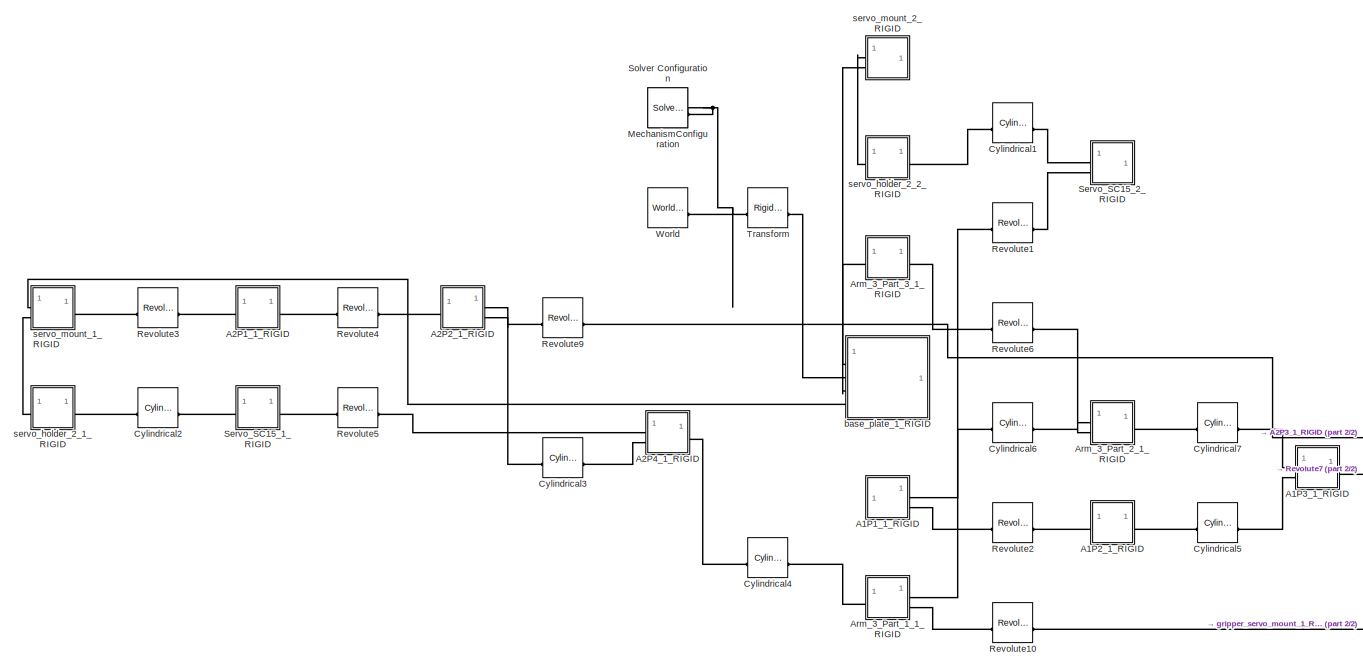
[diagram: root canvas - part 1/2, most of the canvas]
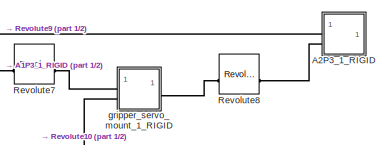
[diagram: root canvas - part 2/2, bottom right region]
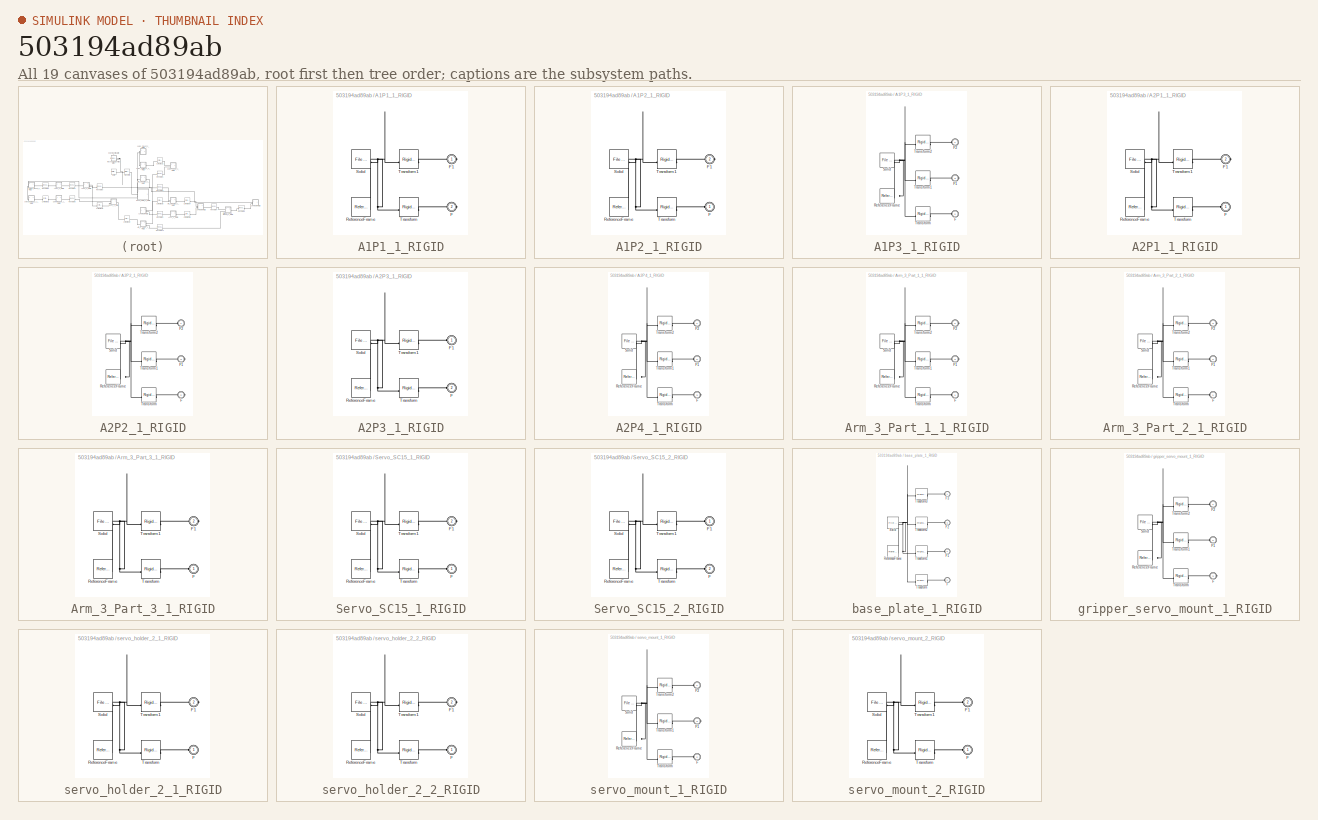
[diagram: thumbnail index - all 19 canvases of the model, root first then tree order]
MODEL slx_503194ad89ab
KIND model
CONFIG AbsTol = auto
CONFIG EnableMultiTasking = off
CONFIG FixedStep = auto
CONFIG MaxStep = auto
CONFIG MinStep = auto
CONFIG RelTol = 1e-3
CONFIG SampleTimeConstraint = Unconstrained
CONFIG SolverName = VariableStepAuto
CONFIG StartTime = 0.0
CONFIG StopTime = 10.0
WORKSPACE source: external: MATLAB File  (data not in archive)
BLOCK [SubSystem] A1P1_1_RIGID
BLOCK [PMIOPort] A1P1_1_RIGID/F
  Port = 2
  Side = Right
BLOCK [PMIOPort] A1P1_1_RIGID/F1
  Side = Right
BLOCK [Reference] A1P1_1_RIGID/ReferenceFrame  REF=sm_lib/Frames and
Transforms/Reference
Frame
  SourceBlock = sm_lib/Frames and\nTransforms/Reference\nFrame
  SourceType = Reference\nFrame
BLOCK [Reference] A1P1_1_RIGID/Solid  REF=sm_lib/Body Elements/File Solid
  SourceBlock = sm_lib/Body Elements/File Solid
  SourceType = File Solid
BLOCK [Reference] A1P1_1_RIGID/Transform  REF=sm_lib/Frames and
Transforms/Rigid
Transform
  SourceBlock = sm_lib/Frames and\nTransforms/Rigid\nTransform
  SourceType = Rigid\nTransform
BLOCK [Reference] A1P1_1_RIGID/Transform1  REF=sm_lib/Frames and
Transforms/Rigid
Transform
  SourceBlock = sm_lib/Frames and\nTransforms/Rigid\nTransform
  SourceType = Rigid\nTransform
BLOCK [SubSystem] A1P2_1_RIGID
BLOCK [PMIOPort] A1P2_1_RIGID/F
  Side = Left
BLOCK [PMIOPort] A1P2_1_RIGID/F1
  Port = 2
  Side = Right
BLOCK [Reference] A1P2_1_RIGID/ReferenceFrame  REF=sm_lib/Frames and
Transforms/Reference
Frame
  SourceBlock = sm_lib/Frames and\nTransforms/Reference\nFrame
  SourceType = Reference\nFrame
BLOCK [Reference] A1P2_1_RIGID/Solid  REF=sm_lib/Body Elements/File Solid
  SourceBlock = sm_lib/Body Elements/File Solid
  SourceType = File Solid
BLOCK [Reference] A1P2_1_RIGID/Transform  REF=sm_lib/Frames and
Transforms/Rigid
Transform
  SourceBlock = sm_lib/Frames and\nTransforms/Rigid\nTransform
  SourceType = Rigid\nTransform
BLOCK [Reference] A1P2_1_RIGID/Transform1  REF=sm_lib/Frames and
Transforms/Rigid
Transform
  SourceBlock = sm_lib/Frames and\nTransforms/Rigid\nTransform
  SourceType = Rigid\nTransform
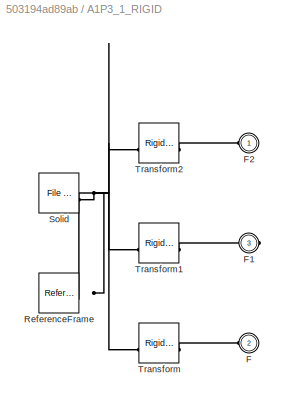
BLOCK [SubSystem] A1P3_1_RIGID
BLOCK [PMIOPort] A1P3_1_RIGID/F
  Port = 2
  Side = Left
BLOCK [PMIOPort] A1P3_1_RIGID/F1
  Port = 3
  Side = Right
BLOCK [PMIOPort] A1P3_1_RIGID/F2
  Side = Left
BLOCK [Reference] A1P3_1_RIGID/ReferenceFrame  REF=sm_lib/Frames and
Transforms/Reference
Frame
  SourceBlock = sm_lib/Frames and\nTransforms/Reference\nFrame
  SourceType = Reference\nFrame
BLOCK [Reference] A1P3_1_RIGID/Solid  REF=sm_lib/Body Elements/File Solid
  SourceBlock = sm_lib/Body Elements/File Solid
  SourceType = File Solid
BLOCK [Reference] A1P3_1_RIGID/Transform  REF=sm_lib/Frames and
Transforms/Rigid
Transform
  SourceBlock = sm_lib/Frames and\nTransforms/Rigid\nTransform
  SourceType = Rigid\nTransform
BLOCK [Reference] A1P3_1_RIGID/Transform1  REF=sm_lib/Frames and
Transforms/Rigid
Transform
  SourceBlock = sm_lib/Frames and\nTransforms/Rigid\nTransform
  SourceType = Rigid\nTransform
BLOCK [Reference] A1P3_1_RIGID/Transform2  REF=sm_lib/Frames and
Transforms/Rigid
Transform
  SourceBlock = sm_lib/Frames and\nTransforms/Rigid\nTransform
  SourceType = Rigid\nTransform
BLOCK [SubSystem] A2P1_1_RIGID
BLOCK [PMIOPort] A2P1_1_RIGID/F
  Side = Left
BLOCK [PMIOPort] A2P1_1_RIGID/F1
  Port = 2
  Side = Right
BLOCK [Reference] A2P1_1_RIGID/ReferenceFrame  REF=sm_lib/Frames and
Transforms/Reference
Frame
  SourceBlock = sm_lib/Frames and\nTransforms/Reference\nFrame
  SourceType = Reference\nFrame
BLOCK [Reference] A2P1_1_RIGID/Solid  REF=sm_lib/Body Elements/File Solid
  SourceBlock = sm_lib/Body Elements/File Solid
  SourceType = File Solid
BLOCK [Reference] A2P1_1_RIGID/Transform  REF=sm_lib/Frames and
Transforms/Rigid
Transform
  SourceBlock = sm_lib/Frames and\nTransforms/Rigid\nTransform
  SourceType = Rigid\nTransform
BLOCK [Reference] A2P1_1_RIGID/Transform1  REF=sm_lib/Frames and
Transforms/Rigid
Transform
  SourceBlock = sm_lib/Frames and\nTransforms/Rigid\nTransform
  SourceType = Rigid\nTransform
BLOCK [SubSystem] A2P2_1_RIGID
BLOCK [PMIOPort] A2P2_1_RIGID/F
  Port = 2
  Side = Right
BLOCK [PMIOPort] A2P2_1_RIGID/F1
  Port = 3
  Side = Right
BLOCK [PMIOPort] A2P2_1_RIGID/F2
  Side = Left
BLOCK [Reference] A2P2_1_RIGID/ReferenceFrame  REF=sm_lib/Frames and
Transforms/Reference
Frame
  SourceBlock = sm_lib/Frames and\nTransforms/Reference\nFrame
  SourceType = Reference\nFrame
BLOCK [Reference] A2P2_1_RIGID/Solid  REF=sm_lib/Body Elements/File Solid
  SourceBlock = sm_lib/Body Elements/File Solid
  SourceType = File Solid
BLOCK [Reference] A2P2_1_RIGID/Transform  REF=sm_lib/Frames and
Transforms/Rigid
Transform
  SourceBlock = sm_lib/Frames and\nTransforms/Rigid\nTransform
  SourceType = Rigid\nTransform
BLOCK [Reference] A2P2_1_RIGID/Transform1  REF=sm_lib/Frames and
Transforms/Rigid
Transform
  SourceBlock = sm_lib/Frames and\nTransforms/Rigid\nTransform
  SourceType = Rigid\nTransform
BLOCK [Reference] A2P2_1_RIGID/Transform2  REF=sm_lib/Frames and
Transforms/Rigid
Transform
  SourceBlock = sm_lib/Frames and\nTransforms/Rigid\nTransform
  SourceType = Rigid\nTransform
BLOCK [SubSystem] A2P3_1_RIGID
BLOCK [PMIOPort] A2P3_1_RIGID/F
  Port = 2
  Side = Left
BLOCK [PMIOPort] A2P3_1_RIGID/F1
  Side = Left
BLOCK [Reference] A2P3_1_RIGID/ReferenceFrame  REF=sm_lib/Frames and
Transforms/Reference
Frame
  SourceBlock = sm_lib/Frames and\nTransforms/Reference\nFrame
  SourceType = Reference\nFrame
BLOCK [Reference] A2P3_1_RIGID/Solid  REF=sm_lib/Body Elements/File Solid
  SourceBlock = sm_lib/Body Elements/File Solid
  SourceType = File Solid
BLOCK [Reference] A2P3_1_RIGID/Transform  REF=sm_lib/Frames and
Transforms/Rigid
Transform
  SourceBlock = sm_lib/Frames and\nTransforms/Rigid\nTransform
  SourceType = Rigid\nTransform
BLOCK [Reference] A2P3_1_RIGID/Transform1  REF=sm_lib/Frames and
Transforms/Rigid
Transform
  SourceBlock = sm_lib/Frames and\nTransforms/Rigid\nTransform
  SourceType = Rigid\nTransform
BLOCK [SubSystem] A2P4_1_RIGID
BLOCK [PMIOPort] A2P4_1_RIGID/F
  Port = 3
  Side = Right
BLOCK [PMIOPort] A2P4_1_RIGID/F1
  Port = 2
  Side = Left
BLOCK [PMIOPort] A2P4_1_RIGID/F2
  Side = Left
BLOCK [Reference] A2P4_1_RIGID/ReferenceFrame  REF=sm_lib/Frames and
Transforms/Reference
Frame
  SourceBlock = sm_lib/Frames and\nTransforms/Reference\nFrame
  SourceType = Reference\nFrame
BLOCK [Reference] A2P4_1_RIGID/Solid  REF=sm_lib/Body Elements/File Solid
  SourceBlock = sm_lib/Body Elements/File Solid
  SourceType = File Solid
BLOCK [Reference] A2P4_1_RIGID/Transform  REF=sm_lib/Frames and
Transforms/Rigid
Transform
  SourceBlock = sm_lib/Frames and\nTransforms/Rigid\nTransform
  SourceType = Rigid\nTransform
BLOCK [Reference] A2P4_1_RIGID/Transform1  REF=sm_lib/Frames and
Transforms/Rigid
Transform
  SourceBlock = sm_lib/Frames and\nTransforms/Rigid\nTransform
  SourceType = Rigid\nTransform
BLOCK [Reference] A2P4_1_RIGID/Transform2  REF=sm_lib/Frames and
Transforms/Rigid
Transform
  SourceBlock = sm_lib/Frames and\nTransforms/Rigid\nTransform
  SourceType = Rigid\nTransform
BLOCK [SubSystem] Arm_3_Part_1_1_RIGID
BLOCK [PMIOPort] Arm_3_Part_1_1_RIGID/F
  Side = Left
BLOCK [PMIOPort] Arm_3_Part_1_1_RIGID/F1
  Port = 3
  Side = Right
BLOCK [PMIOPort] Arm_3_Part_1_1_RIGID/F2
  Port = 2
  Side = Right
BLOCK [Reference] Arm_3_Part_1_1_RIGID/ReferenceFrame  REF=sm_lib/Frames and
Transforms/Reference
Frame
  SourceBlock = sm_lib/Frames and\nTransforms/Reference\nFrame
  SourceType = Reference\nFrame
BLOCK [Reference] Arm_3_Part_1_1_RIGID/Solid  REF=sm_lib/Body Elements/File Solid
  SourceBlock = sm_lib/Body Elements/File Solid
  SourceType = File Solid
BLOCK [Reference] Arm_3_Part_1_1_RIGID/Transform  REF=sm_lib/Frames and
Transforms/Rigid
Transform
  SourceBlock = sm_lib/Frames and\nTransforms/Rigid\nTransform
  SourceType = Rigid\nTransform
BLOCK [Reference] Arm_3_Part_1_1_RIGID/Transform1  REF=sm_lib/Frames and
Transforms/Rigid
Transform
  SourceBlock = sm_lib/Frames and\nTransforms/Rigid\nTransform
  SourceType = Rigid\nTransform
BLOCK [Reference] Arm_3_Part_1_1_RIGID/Transform2  REF=sm_lib/Frames and
Transforms/Rigid
Transform
  SourceBlock = sm_lib/Frames and\nTransforms/Rigid\nTransform
  SourceType = Rigid\nTransform
BLOCK [SubSystem] Arm_3_Part_2_1_RIGID
BLOCK [PMIOPort] Arm_3_Part_2_1_RIGID/F
  Side = Left
BLOCK [PMIOPort] Arm_3_Part_2_1_RIGID/F1
  Port = 2
  Side = Left
BLOCK [PMIOPort] Arm_3_Part_2_1_RIGID/F2
  Port = 3
  Side = Right
BLOCK [Reference] Arm_3_Part_2_1_RIGID/ReferenceFrame  REF=sm_lib/Frames and
Transforms/Reference
Frame
  SourceBlock = sm_lib/Frames and\nTransforms/Reference\nFrame
  SourceType = Reference\nFrame
BLOCK [Reference] Arm_3_Part_2_1_RIGID/Solid  REF=sm_lib/Body Elements/File Solid
  SourceBlock = sm_lib/Body Elements/File Solid
  SourceType = File Solid
BLOCK [Reference] Arm_3_Part_2_1_RIGID/Transform  REF=sm_lib/Frames and
Transforms/Rigid
Transform
  SourceBlock = sm_lib/Frames and\nTransforms/Rigid\nTransform
  SourceType = Rigid\nTransform
BLOCK [Reference] Arm_3_Part_2_1_RIGID/Transform1  REF=sm_lib/Frames and
Transforms/Rigid
Transform
  SourceBlock = sm_lib/Frames and\nTransforms/Rigid\nTransform
  SourceType = Rigid\nTransform
BLOCK [Reference] Arm_3_Part_2_1_RIGID/Transform2  REF=sm_lib/Frames and
Transforms/Rigid
Transform
  SourceBlock = sm_lib/Frames and\nTransforms/Rigid\nTransform
  SourceType = Rigid\nTransform
BLOCK [SubSystem] Arm_3_Part_3_1_RIGID
BLOCK [PMIOPort] Arm_3_Part_3_1_RIGID/F
  Side = Left
BLOCK [PMIOPort] Arm_3_Part_3_1_RIGID/F1
  Port = 2
  Side = Right
BLOCK [Reference] Arm_3_Part_3_1_RIGID/ReferenceFrame  REF=sm_lib/Frames and
Transforms/Reference
Frame
  SourceBlock = sm_lib/Frames and\nTransforms/Reference\nFrame
  SourceType = Reference\nFrame
BLOCK [Reference] Arm_3_Part_3_1_RIGID/Solid  REF=sm_lib/Body Elements/File Solid
  SourceBlock = sm_lib/Body Elements/File Solid
  SourceType = File Solid
BLOCK [Reference] Arm_3_Part_3_1_RIGID/Transform  REF=sm_lib/Frames and
Transforms/Rigid
Transform
  SourceBlock = sm_lib/Frames and\nTransforms/Rigid\nTransform
  SourceType = Rigid\nTransform
BLOCK [Reference] Arm_3_Part_3_1_RIGID/Transform1  REF=sm_lib/Frames and
Transforms/Rigid
Transform
  SourceBlock = sm_lib/Frames and\nTransforms/Rigid\nTransform
  SourceType = Rigid\nTransform
BLOCK [Reference] Cylindrical1  REF=sm_lib/Joints/Cylindrical
Joint
  SourceBlock = sm_lib/Joints/Cylindrical\nJoint
  SourceType = Cylindrical\nJoint
BLOCK [Reference] Cylindrical2  REF=sm_lib/Joints/Cylindrical
Joint
  SourceBlock = sm_lib/Joints/Cylindrical\nJoint
  SourceType = Cylindrical\nJoint
BLOCK [Reference] Cylindrical3  REF=sm_lib/Joints/Cylindrical
Joint
  SourceBlock = sm_lib/Joints/Cylindrical\nJoint
  SourceType = Cylindrical\nJoint
BLOCK [Reference] Cylindrical4  REF=sm_lib/Joints/Cylindrical
Joint
  SourceBlock = sm_lib/Joints/Cylindrical\nJoint
  SourceType = Cylindrical\nJoint
BLOCK [Reference] Cylindrical5  REF=sm_lib/Joints/Cylindrical
Joint
  SourceBlock = sm_lib/Joints/Cylindrical\nJoint
  SourceType = Cylindrical\nJoint
BLOCK [Reference] Cylindrical6  REF=sm_lib/Joints/Cylindrical
Joint
  SourceBlock = sm_lib/Joints/Cylindrical\nJoint
  SourceType = Cylindrical\nJoint
BLOCK [Reference] Cylindrical7  REF=sm_lib/Joints/Cylindrical
Joint
  SourceBlock = sm_lib/Joints/Cylindrical\nJoint
  SourceType = Cylindrical\nJoint
BLOCK [Reference] MechanismConfiguration  REF=sm_lib/Utilities/Mechanism
Configuration
  SourceBlock = sm_lib/Utilities/Mechanism\nConfiguration
  SourceType = Mechanism\nConfiguration
BLOCK [Reference] Revolute1  REF=sm_lib/Joints/Revolute Joint
  SourceBlock = sm_lib/Joints/Revolute Joint
  SourceType = Revolute Joint
BLOCK [Reference] Revolute10  REF=sm_lib/Joints/Revolute Joint
  SourceBlock = sm_lib/Joints/Revolute Joint
  SourceType = Revolute Joint
BLOCK [Reference] Revolute2  REF=sm_lib/Joints/Revolute Joint
  SourceBlock = sm_lib/Joints/Revolute Joint
  SourceType = Revolute Joint
BLOCK [Reference] Revolute3  REF=sm_lib/Joints/Revolute Joint
  SourceBlock = sm_lib/Joints/Revolute Joint
  SourceType = Revolute Joint
BLOCK [Reference] Revolute4  REF=sm_lib/Joints/Revolute Joint
  SourceBlock = sm_lib/Joints/Revolute Joint
  SourceType = Revolute Joint
BLOCK [Reference] Revolute5  REF=sm_lib/Joints/Revolute Joint
  SourceBlock = sm_lib/Joints/Revolute Joint
  SourceType = Revolute Joint
BLOCK [Reference] Revolute6  REF=sm_lib/Joints/Revolute Joint
  SourceBlock = sm_lib/Joints/Revolute Joint
  SourceType = Revolute Joint
BLOCK [Reference] Revolute7  REF=sm_lib/Joints/Revolute Joint
  SourceBlock = sm_lib/Joints/Revolute Joint
  SourceType = Revolute Joint
BLOCK [Reference] Revolute8  REF=sm_lib/Joints/Revolute Joint
  SourceBlock = sm_lib/Joints/Revolute Joint
  SourceType = Revolute Joint
BLOCK [Reference] Revolute9  REF=sm_lib/Joints/Revolute Joint
  SourceBlock = sm_lib/Joints/Revolute Joint
  SourceType = Revolute Joint
BLOCK [SubSystem] Servo_SC15_1_RIGID
BLOCK [PMIOPort] Servo_SC15_1_RIGID/F
  Side = Left
BLOCK [PMIOPort] Servo_SC15_1_RIGID/F1
  Port = 2
  Side = Right
BLOCK [Reference] Servo_SC15_1_RIGID/ReferenceFrame  REF=sm_lib/Frames and
Transforms/Reference
Frame
  SourceBlock = sm_lib/Frames and\nTransforms/Reference\nFrame
  SourceType = Reference\nFrame
BLOCK [Reference] Servo_SC15_1_RIGID/Solid  REF=sm_lib/Body Elements/File Solid
  SourceBlock = sm_lib/Body Elements/File Solid
  SourceType = File Solid
BLOCK [Reference] Servo_SC15_1_RIGID/Transform  REF=sm_lib/Frames and
Transforms/Rigid
Transform
  SourceBlock = sm_lib/Frames and\nTransforms/Rigid\nTransform
  SourceType = Rigid\nTransform
BLOCK [Reference] Servo_SC15_1_RIGID/Transform1  REF=sm_lib/Frames and
Transforms/Rigid
Transform
  SourceBlock = sm_lib/Frames and\nTransforms/Rigid\nTransform
  SourceType = Rigid\nTransform
BLOCK [SubSystem] Servo_SC15_2_RIGID
BLOCK [PMIOPort] Servo_SC15_2_RIGID/F
  Port = 2
  Side = Left
BLOCK [PMIOPort] Servo_SC15_2_RIGID/F1
  Side = Left
BLOCK [Reference] Servo_SC15_2_RIGID/ReferenceFrame  REF=sm_lib/Frames and
Transforms/Reference
Frame
  SourceBlock = sm_lib/Frames and\nTransforms/Reference\nFrame
  SourceType = Reference\nFrame
BLOCK [Reference] Servo_SC15_2_RIGID/Solid  REF=sm_lib/Body Elements/File Solid
  SourceBlock = sm_lib/Body Elements/File Solid
  SourceType = File Solid
BLOCK [Reference] Servo_SC15_2_RIGID/Transform  REF=sm_lib/Frames and
Transforms/Rigid
Transform
  SourceBlock = sm_lib/Frames and\nTransforms/Rigid\nTransform
  SourceType = Rigid\nTransform
BLOCK [Reference] Servo_SC15_2_RIGID/Transform1  REF=sm_lib/Frames and
Transforms/Rigid
Transform
  SourceBlock = sm_lib/Frames and\nTransforms/Rigid\nTransform
  SourceType = Rigid\nTransform
BLOCK [Reference] Solver Configuration  REF=nesl_utility/Solver
Configuration
  SourceBlock = nesl_utility/Solver\nConfiguration
  SourceType = Solver\nConfiguration
BLOCK [Reference] Transform  REF=sm_lib/Frames and
Transforms/Rigid
Transform
  SourceBlock = sm_lib/Frames and\nTransforms/Rigid\nTransform
  SourceType = Rigid\nTransform
BLOCK [Reference] World  REF=sm_lib/Frames and
Transforms/World Frame
  SourceBlock = sm_lib/Frames and\nTransforms/World Frame
  SourceType = World Frame
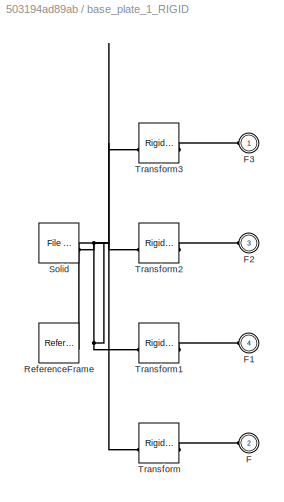
BLOCK [SubSystem] base_plate_1_RIGID
BLOCK [PMIOPort] base_plate_1_RIGID/F
  Port = 2
  Side = Left
BLOCK [PMIOPort] base_plate_1_RIGID/F1
  Port = 4
  Side = Left
BLOCK [PMIOPort] base_plate_1_RIGID/F2
  Port = 3
  Side = Left
BLOCK [PMIOPort] base_plate_1_RIGID/F3
  Side = Left
BLOCK [Reference] base_plate_1_RIGID/ReferenceFrame  REF=sm_lib/Frames and
Transforms/Reference
Frame
  SourceBlock = sm_lib/Frames and\nTransforms/Reference\nFrame
  SourceType = Reference\nFrame
BLOCK [Reference] base_plate_1_RIGID/Solid  REF=sm_lib/Body Elements/File Solid
  SourceBlock = sm_lib/Body Elements/File Solid
  SourceType = File Solid
BLOCK [Reference] base_plate_1_RIGID/Transform  REF=sm_lib/Frames and
Transforms/Rigid
Transform
  SourceBlock = sm_lib/Frames and\nTransforms/Rigid\nTransform
  SourceType = Rigid\nTransform
BLOCK [Reference] base_plate_1_RIGID/Transform1  REF=sm_lib/Frames and
Transforms/Rigid
Transform
  SourceBlock = sm_lib/Frames and\nTransforms/Rigid\nTransform
  SourceType = Rigid\nTransform
BLOCK [Reference] base_plate_1_RIGID/Transform2  REF=sm_lib/Frames and
Transforms/Rigid
Transform
  SourceBlock = sm_lib/Frames and\nTransforms/Rigid\nTransform
  SourceType = Rigid\nTransform
BLOCK [Reference] base_plate_1_RIGID/Transform3  REF=sm_lib/Frames and
Transforms/Rigid
Transform
  SourceBlock = sm_lib/Frames and\nTransforms/Rigid\nTransform
  SourceType = Rigid\nTransform
BLOCK [SubSystem] gripper_servo_mount_1_RIGID
BLOCK [PMIOPort] gripper_servo_mount_1_RIGID/F
  Port = 3
  Side = Right
BLOCK [PMIOPort] gripper_servo_mount_1_RIGID/F1
  Port = 2
  Side = Left
BLOCK [PMIOPort] gripper_servo_mount_1_RIGID/F2
  Side = Left
BLOCK [Reference] gripper_servo_mount_1_RIGID/ReferenceFrame  REF=sm_lib/Frames and
Transforms/Reference
Frame
  SourceBlock = sm_lib/Frames and\nTransforms/Reference\nFrame
  SourceType = Reference\nFrame
BLOCK [Reference] gripper_servo_mount_1_RIGID/Solid  REF=sm_lib/Body Elements/File Solid
  SourceBlock = sm_lib/Body Elements/File Solid
  SourceType = File Solid
BLOCK [Reference] gripper_servo_mount_1_RIGID/Transform  REF=sm_lib/Frames and
Transforms/Rigid
Transform
  SourceBlock = sm_lib/Frames and\nTransforms/Rigid\nTransform
  SourceType = Rigid\nTransform
BLOCK [Reference] gripper_servo_mount_1_RIGID/Transform1  REF=sm_lib/Frames and
Transforms/Rigid
Transform
  SourceBlock = sm_lib/Frames and\nTransforms/Rigid\nTransform
  SourceType = Rigid\nTransform
BLOCK [Reference] gripper_servo_mount_1_RIGID/Transform2  REF=sm_lib/Frames and
Transforms/Rigid
Transform
  SourceBlock = sm_lib/Frames and\nTransforms/Rigid\nTransform
  SourceType = Rigid\nTransform
BLOCK [SubSystem] servo_holder_2_1_RIGID
BLOCK [PMIOPort] servo_holder_2_1_RIGID/F
  Side = Left
BLOCK [PMIOPort] servo_holder_2_1_RIGID/F1
  Port = 2
  Side = Right
BLOCK [Reference] servo_holder_2_1_RIGID/ReferenceFrame  REF=sm_lib/Frames and
Transforms/Reference
Frame
  SourceBlock = sm_lib/Frames and\nTransforms/Reference\nFrame
  SourceType = Reference\nFrame
BLOCK [Reference] servo_holder_2_1_RIGID/Solid  REF=sm_lib/Body Elements/File Solid
  SourceBlock = sm_lib/Body Elements/File Solid
  SourceType = File Solid
BLOCK [Reference] servo_holder_2_1_RIGID/Transform  REF=sm_lib/Frames and
Transforms/Rigid
Transform
  SourceBlock = sm_lib/Frames and\nTransforms/Rigid\nTransform
  SourceType = Rigid\nTransform
BLOCK [Reference] servo_holder_2_1_RIGID/Transform1  REF=sm_lib/Frames and
Transforms/Rigid
Transform
  SourceBlock = sm_lib/Frames and\nTransforms/Rigid\nTransform
  SourceType = Rigid\nTransform
BLOCK [SubSystem] servo_holder_2_2_RIGID
BLOCK [PMIOPort] servo_holder_2_2_RIGID/F
  Side = Left
BLOCK [PMIOPort] servo_holder_2_2_RIGID/F1
  Port = 2
  Side = Right
BLOCK [Reference] servo_holder_2_2_RIGID/ReferenceFrame  REF=sm_lib/Frames and
Transforms/Reference
Frame
  SourceBlock = sm_lib/Frames and\nTransforms/Reference\nFrame
  SourceType = Reference\nFrame
BLOCK [Reference] servo_holder_2_2_RIGID/Solid  REF=sm_lib/Body Elements/File Solid
  SourceBlock = sm_lib/Body Elements/File Solid
  SourceType = File Solid
BLOCK [Reference] servo_holder_2_2_RIGID/Transform  REF=sm_lib/Frames and
Transforms/Rigid
Transform
  SourceBlock = sm_lib/Frames and\nTransforms/Rigid\nTransform
  SourceType = Rigid\nTransform
BLOCK [Reference] servo_holder_2_2_RIGID/Transform1  REF=sm_lib/Frames and
Transforms/Rigid
Transform
  SourceBlock = sm_lib/Frames and\nTransforms/Rigid\nTransform
  SourceType = Rigid\nTransform
BLOCK [SubSystem] servo_mount_1_RIGID
BLOCK [PMIOPort] servo_mount_1_RIGID/F
  Port = 2
  Side = Left
BLOCK [PMIOPort] servo_mount_1_RIGID/F1
  Port = 3
  Side = Right
BLOCK [PMIOPort] servo_mount_1_RIGID/F2
  Side = Left
BLOCK [Reference] servo_mount_1_RIGID/ReferenceFrame  REF=sm_lib/Frames and
Transforms/Reference
Frame
  SourceBlock = sm_lib/Frames and\nTransforms/Reference\nFrame
  SourceType = Reference\nFrame
BLOCK [Reference] servo_mount_1_RIGID/Solid  REF=sm_lib/Body Elements/File Solid
  SourceBlock = sm_lib/Body Elements/File Solid
  SourceType = File Solid
BLOCK [Reference] servo_mount_1_RIGID/Transform  REF=sm_lib/Frames and
Transforms/Rigid
Transform
  SourceBlock = sm_lib/Frames and\nTransforms/Rigid\nTransform
  SourceType = Rigid\nTransform
BLOCK [Reference] servo_mount_1_RIGID/Transform1  REF=sm_lib/Frames and
Transforms/Rigid
Transform
  SourceBlock = sm_lib/Frames and\nTransforms/Rigid\nTransform
  SourceType = Rigid\nTransform
BLOCK [Reference] servo_mount_1_RIGID/Transform2  REF=sm_lib/Frames and
Transforms/Rigid
Transform
  SourceBlock = sm_lib/Frames and\nTransforms/Rigid\nTransform
  SourceType = Rigid\nTransform
BLOCK [SubSystem] servo_mount_2_RIGID
BLOCK [PMIOPort] servo_mount_2_RIGID/F
  Side = Left
BLOCK [PMIOPort] servo_mount_2_RIGID/F1
  Port = 2
  Side = Left
BLOCK [Reference] servo_mount_2_RIGID/ReferenceFrame  REF=sm_lib/Frames and
Transforms/Reference
Frame
  SourceBlock = sm_lib/Frames and\nTransforms/Reference\nFrame
  SourceType = Reference\nFrame
BLOCK [Reference] servo_mount_2_RIGID/Solid  REF=sm_lib/Body Elements/File Solid
  SourceBlock = sm_lib/Body Elements/File Solid
  SourceType = File Solid
BLOCK [Reference] servo_mount_2_RIGID/Transform  REF=sm_lib/Frames and
Transforms/Rigid
Transform
  SourceBlock = sm_lib/Frames and\nTransforms/Rigid\nTransform
  SourceType = Rigid\nTransform
BLOCK [Reference] servo_mount_2_RIGID/Transform1  REF=sm_lib/Frames and
Transforms/Rigid
Transform
  SourceBlock = sm_lib/Frames and\nTransforms/Rigid\nTransform
  SourceType = Rigid\nTransform
PLINE A1P1_1_RIGID/F1:RConn1 -- A1P1_1_RIGID/Transform1:RConn1
PLINE A1P1_1_RIGID/F:RConn1 -- A1P1_1_RIGID/Transform:RConn1
PNET net1: A1P1_1_RIGID/ReferenceFrame:RConn1 -- A1P1_1_RIGID/Solid:RConn1 -- A1P1_1_RIGID/Transform1:LConn1 -- A1P1_1_RIGID/Transform:LConn1
PLINE A1P1_1_RIGID:RConn1 -- Revolute1:LConn1
PLINE A1P1_1_RIGID:RConn2 -- Revolute2:LConn1
PLINE A1P2_1_RIGID/F1:RConn1 -- A1P2_1_RIGID/Transform1:RConn1
PLINE A1P2_1_RIGID/F:RConn1 -- A1P2_1_RIGID/Transform:RConn1
PNET net2: A1P2_1_RIGID/ReferenceFrame:RConn1 -- A1P2_1_RIGID/Solid:RConn1 -- A1P2_1_RIGID/Transform1:LConn1 -- A1P2_1_RIGID/Transform:LConn1
PLINE A1P2_1_RIGID:LConn1 -- Revolute2:RConn1
PLINE A1P2_1_RIGID:RConn1 -- Cylindrical5:LConn1
PLINE A1P3_1_RIGID/F1:RConn1 -- A1P3_1_RIGID/Transform1:RConn1
PLINE A1P3_1_RIGID/F2:RConn1 -- A1P3_1_RIGID/Transform2:RConn1
PLINE A1P3_1_RIGID/F:RConn1 -- A1P3_1_RIGID/Transform:RConn1
PNET net3: A1P3_1_RIGID/ReferenceFrame:RConn1 -- A1P3_1_RIGID/Solid:RConn1 -- A1P3_1_RIGID/Transform1:LConn1 -- A1P3_1_RIGID/Transform2:LConn1 -- A1P3_1_RIGID/Transform:LConn1
PLINE A1P3_1_RIGID:LConn1 -- Cylindrical7:RConn1
PLINE A1P3_1_RIGID:LConn2 -- Cylindrical5:RConn1
PLINE A1P3_1_RIGID:RConn1 -- Revolute7:LConn1
PLINE A2P1_1_RIGID/F1:RConn1 -- A2P1_1_RIGID/Transform1:RConn1
PLINE A2P1_1_RIGID/F:RConn1 -- A2P1_1_RIGID/Transform:RConn1
PNET net4: A2P1_1_RIGID/ReferenceFrame:RConn1 -- A2P1_1_RIGID/Solid:RConn1 -- A2P1_1_RIGID/Transform1:LConn1 -- A2P1_1_RIGID/Transform:LConn1
PLINE A2P1_1_RIGID:LConn1 -- Revolute3:RConn1
PLINE A2P1_1_RIGID:RConn1 -- Revolute4:LConn1
PLINE A2P2_1_RIGID/F1:RConn1 -- A2P2_1_RIGID/Transform1:RConn1
PLINE A2P2_1_RIGID/F2:RConn1 -- A2P2_1_RIGID/Transform2:RConn1
PLINE A2P2_1_RIGID/F:RConn1 -- A2P2_1_RIGID/Transform:RConn1
PNET net5: A2P2_1_RIGID/ReferenceFrame:RConn1 -- A2P2_1_RIGID/Solid:RConn1 -- A2P2_1_RIGID/Transform1:LConn1 -- A2P2_1_RIGID/Transform2:LConn1 -- A2P2_1_RIGID/Transform:LConn1
PLINE A2P2_1_RIGID:LConn1 -- Revolute4:RConn1
PLINE A2P2_1_RIGID:RConn1 -- Revolute9:LConn1
PLINE A2P2_1_RIGID:RConn2 -- Cylindrical3:LConn1
PLINE A2P3_1_RIGID/F1:RConn1 -- A2P3_1_RIGID/Transform1:RConn1
PLINE A2P3_1_RIGID/F:RConn1 -- A2P3_1_RIGID/Transform:RConn1
PNET net6: A2P3_1_RIGID/ReferenceFrame:RConn1 -- A2P3_1_RIGID/Solid:RConn1 -- A2P3_1_RIGID/Transform1:LConn1 -- A2P3_1_RIGID/Transform:LConn1
PLINE A2P3_1_RIGID:LConn1 -- Revolute9:RConn1
PLINE A2P3_1_RIGID:LConn2 -- Revolute8:RConn1
PLINE A2P4_1_RIGID/F1:RConn1 -- A2P4_1_RIGID/Transform1:RConn1
PLINE A2P4_1_RIGID/F2:RConn1 -- A2P4_1_RIGID/Transform2:RConn1
PLINE A2P4_1_RIGID/F:RConn1 -- A2P4_1_RIGID/Transform:RConn1
PNET net7: A2P4_1_RIGID/ReferenceFrame:RConn1 -- A2P4_1_RIGID/Solid:RConn1 -- A2P4_1_RIGID/Transform1:LConn1 -- A2P4_1_RIGID/Transform2:LConn1 -- A2P4_1_RIGID/Transform:LConn1
PLINE A2P4_1_RIGID:LConn1 -- Revolute5:RConn1
PLINE A2P4_1_RIGID:LConn2 -- Cylindrical3:RConn1
PLINE A2P4_1_RIGID:RConn1 -- Cylindrical4:LConn1
PLINE Arm_3_Part_1_1_RIGID/F1:RConn1 -- Arm_3_Part_1_1_RIGID/Transform1:RConn1
PLINE Arm_3_Part_1_1_RIGID/F2:RConn1 -- Arm_3_Part_1_1_RIGID/Transform2:RConn1
PLINE Arm_3_Part_1_1_RIGID/F:RConn1 -- Arm_3_Part_1_1_RIGID/Transform:RConn1
PNET net8: Arm_3_Part_1_1_RIGID/ReferenceFrame:RConn1 -- Arm_3_Part_1_1_RIGID/Solid:RConn1 -- Arm_3_Part_1_1_RIGID/Transform1:LConn1 -- Arm_3_Part_1_1_RIGID/Transform2:LConn1 -- Arm_3_Part_1_1_RIGID/Transform:LConn1
PLINE Arm_3_Part_1_1_RIGID:LConn1 -- Cylindrical4:RConn1
PLINE Arm_3_Part_1_1_RIGID:RConn1 -- Cylindrical6:LConn1
PLINE Arm_3_Part_1_1_RIGID:RConn2 -- Revolute10:LConn1
PLINE Arm_3_Part_2_1_RIGID/F1:RConn1 -- Arm_3_Part_2_1_RIGID/Transform1:RConn1
PLINE Arm_3_Part_2_1_RIGID/F2:RConn1 -- Arm_3_Part_2_1_RIGID/Transform2:RConn1
PLINE Arm_3_Part_2_1_RIGID/F:RConn1 -- Arm_3_Part_2_1_RIGID/Transform:RConn1
PNET net9: Arm_3_Part_2_1_RIGID/ReferenceFrame:RConn1 -- Arm_3_Part_2_1_RIGID/Solid:RConn1 -- Arm_3_Part_2_1_RIGID/Transform1:LConn1 -- Arm_3_Part_2_1_RIGID/Transform2:LConn1 -- Arm_3_Part_2_1_RIGID/Transform:LConn1
PLINE Arm_3_Part_2_1_RIGID:LConn1 -- Revolute6:RConn1
PLINE Arm_3_Part_2_1_RIGID:LConn2 -- Cylindrical6:RConn1
PLINE Arm_3_Part_2_1_RIGID:RConn1 -- Cylindrical7:LConn1
PLINE Arm_3_Part_3_1_RIGID/F1:RConn1 -- Arm_3_Part_3_1_RIGID/Transform1:RConn1
PLINE Arm_3_Part_3_1_RIGID/F:RConn1 -- Arm_3_Part_3_1_RIGID/Transform:RConn1
PNET net10: Arm_3_Part_3_1_RIGID/ReferenceFrame:RConn1 -- Arm_3_Part_3_1_RIGID/Solid:RConn1 -- Arm_3_Part_3_1_RIGID/Transform1:LConn1 -- Arm_3_Part_3_1_RIGID/Transform:LConn1
PLINE Arm_3_Part_3_1_RIGID:LConn1 -- base_plate_1_RIGID:LConn3
PLINE Arm_3_Part_3_1_RIGID:RConn1 -- Revolute6:LConn1
PLINE Cylindrical1:LConn1 -- servo_holder_2_2_RIGID:RConn1
PLINE Cylindrical1:RConn1 -- Servo_SC15_2_RIGID:LConn1
PLINE Cylindrical2:LConn1 -- servo_holder_2_1_RIGID:RConn1
PLINE Cylindrical2:RConn1 -- Servo_SC15_1_RIGID:LConn1
PNET net11: MechanismConfiguration:RConn1 -- Solver Configuration:RConn1 -- Transform:LConn1 -- World:RConn1
PLINE Revolute10:RConn1 -- gripper_servo_mount_1_RIGID:LConn2
PLINE Revolute1:RConn1 -- Servo_SC15_2_RIGID:LConn2
PLINE Revolute3:LConn1 -- servo_mount_1_RIGID:RConn1
PLINE Revolute5:LConn1 -- Servo_SC15_1_RIGID:RConn1
PLINE Revolute7:RConn1 -- gripper_servo_mount_1_RIGID:LConn1
PLINE Revolute8:LConn1 -- gripper_servo_mount_1_RIGID:RConn1
PLINE Servo_SC15_1_RIGID/F1:RConn1 -- Servo_SC15_1_RIGID/Transform1:RConn1
PLINE Servo_SC15_1_RIGID/F:RConn1 -- Servo_SC15_1_RIGID/Transform:RConn1
PNET net12: Servo_SC15_1_RIGID/ReferenceFrame:RConn1 -- Servo_SC15_1_RIGID/Solid:RConn1 -- Servo_SC15_1_RIGID/Transform1:LConn1 -- Servo_SC15_1_RIGID/Transform:LConn1
PLINE Servo_SC15_2_RIGID/F1:RConn1 -- Servo_SC15_2_RIGID/Transform1:RConn1
PLINE Servo_SC15_2_RIGID/F:RConn1 -- Servo_SC15_2_RIGID/Transform:RConn1
PNET net13: Servo_SC15_2_RIGID/ReferenceFrame:RConn1 -- Servo_SC15_2_RIGID/Solid:RConn1 -- Servo_SC15_2_RIGID/Transform1:LConn1 -- Servo_SC15_2_RIGID/Transform:LConn1
PLINE Transform:RConn1 -- base_plate_1_RIGID:LConn2
PLINE base_plate_1_RIGID/F1:RConn1 -- base_plate_1_RIGID/Transform1:RConn1
PLINE base_plate_1_RIGID/F2:RConn1 -- base_plate_1_RIGID/Transform2:RConn1
PLINE base_plate_1_RIGID/F3:RConn1 -- base_plate_1_RIGID/Transform3:RConn1
PLINE base_plate_1_RIGID/F:RConn1 -- base_plate_1_RIGID/Transform:RConn1
PNET net14: base_plate_1_RIGID/ReferenceFrame:RConn1 -- base_plate_1_RIGID/Solid:RConn1 -- base_plate_1_RIGID/Transform1:LConn1 -- base_plate_1_RIGID/Transform2:LConn1 -- base_plate_1_RIGID/Transform3:LConn1 -- base_plate_1_RIGID/Transform:LConn1
PLINE base_plate_1_RIGID:LConn1 -- servo_mount_2_RIGID:LConn2
PLINE base_plate_1_RIGID:LConn4 -- servo_mount_1_RIGID:LConn1
PLINE gripper_servo_mount_1_RIGID/F1:RConn1 -- gripper_servo_mount_1_RIGID/Transform1:RConn1
PLINE gripper_servo_mount_1_RIGID/F2:RConn1 -- gripper_servo_mount_1_RIGID/Transform2:RConn1
PLINE gripper_servo_mount_1_RIGID/F:RConn1 -- gripper_servo_mount_1_RIGID/Transform:RConn1
PNET net15: gripper_servo_mount_1_RIGID/ReferenceFrame:RConn1 -- gripper_servo_mount_1_RIGID/Solid:RConn1 -- gripper_servo_mount_1_RIGID/Transform1:LConn1 -- gripper_servo_mount_1_RIGID/Transform2:LConn1 -- gripper_servo_mount_1_RIGID/Transform:LConn1
PLINE servo_holder_2_1_RIGID/F1:RConn1 -- servo_holder_2_1_RIGID/Transform1:RConn1
PLINE servo_holder_2_1_RIGID/F:RConn1 -- servo_holder_2_1_RIGID/Transform:RConn1
PNET net16: servo_holder_2_1_RIGID/ReferenceFrame:RConn1 -- servo_holder_2_1_RIGID/Solid:RConn1 -- servo_holder_2_1_RIGID/Transform1:LConn1 -- servo_holder_2_1_RIGID/Transform:LConn1
PLINE servo_holder_2_1_RIGID:LConn1 -- servo_mount_1_RIGID:LConn2
PLINE servo_holder_2_2_RIGID/F1:RConn1 -- servo_holder_2_2_RIGID/Transform1:RConn1
PLINE servo_holder_2_2_RIGID/F:RConn1 -- servo_holder_2_2_RIGID/Transform:RConn1
PNET net17: servo_holder_2_2_RIGID/ReferenceFrame:RConn1 -- servo_holder_2_2_RIGID/Solid:RConn1 -- servo_holder_2_2_RIGID/Transform1:LConn1 -- servo_holder_2_2_RIGID/Transform:LConn1
PLINE servo_holder_2_2_RIGID:LConn1 -- servo_mount_2_RIGID:LConn1
PLINE servo_mount_1_RIGID/F1:RConn1 -- servo_mount_1_RIGID/Transform1:RConn1
PLINE servo_mount_1_RIGID/F2:RConn1 -- servo_mount_1_RIGID/Transform2:RConn1
PLINE servo_mount_1_RIGID/F:RConn1 -- servo_mount_1_RIGID/Transform:RConn1
PNET net18: servo_mount_1_RIGID/ReferenceFrame:RConn1 -- servo_mount_1_RIGID/Solid:RConn1 -- servo_mount_1_RIGID/Transform1:LConn1 -- servo_mount_1_RIGID/Transform2:LConn1 -- servo_mount_1_RIGID/Transform:LConn1
PLINE servo_mount_2_RIGID/F1:RConn1 -- servo_mount_2_RIGID/Transform1:RConn1
PLINE servo_mount_2_RIGID/F:RConn1 -- servo_mount_2_RIGID/Transform:RConn1
PNET net19: servo_mount_2_RIGID/ReferenceFrame:RConn1 -- servo_mount_2_RIGID/Solid:RConn1 -- servo_mount_2_RIGID/Transform1:LConn1 -- servo_mount_2_RIGID/Transform:LConn1
note: PNET lines group multi-terminal physical nets as a canonical sorted terminal list (undirected conserving connections); 2-terminal nets keep the pairwise PLINE form
